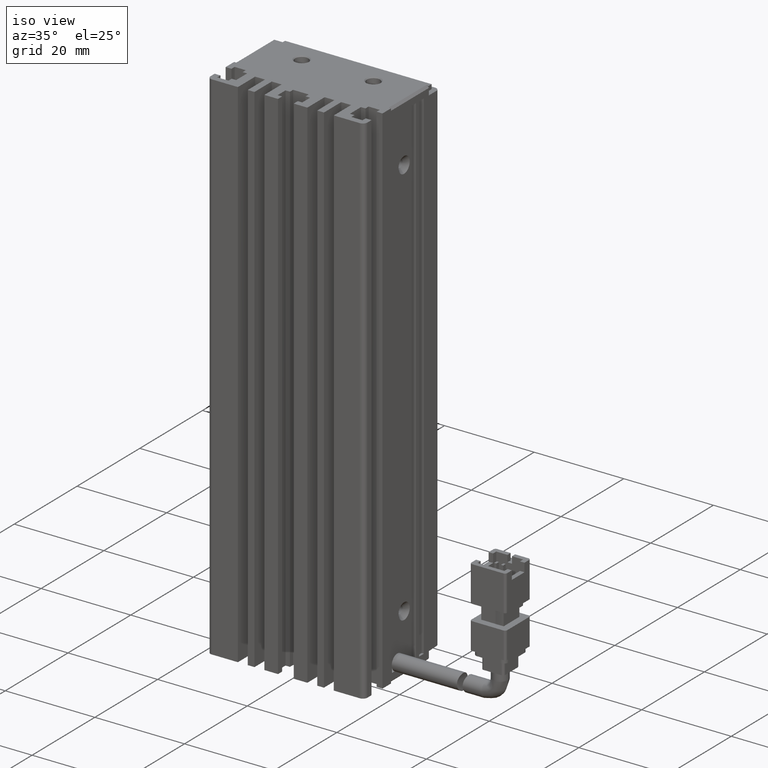
[diagram: clean part render]
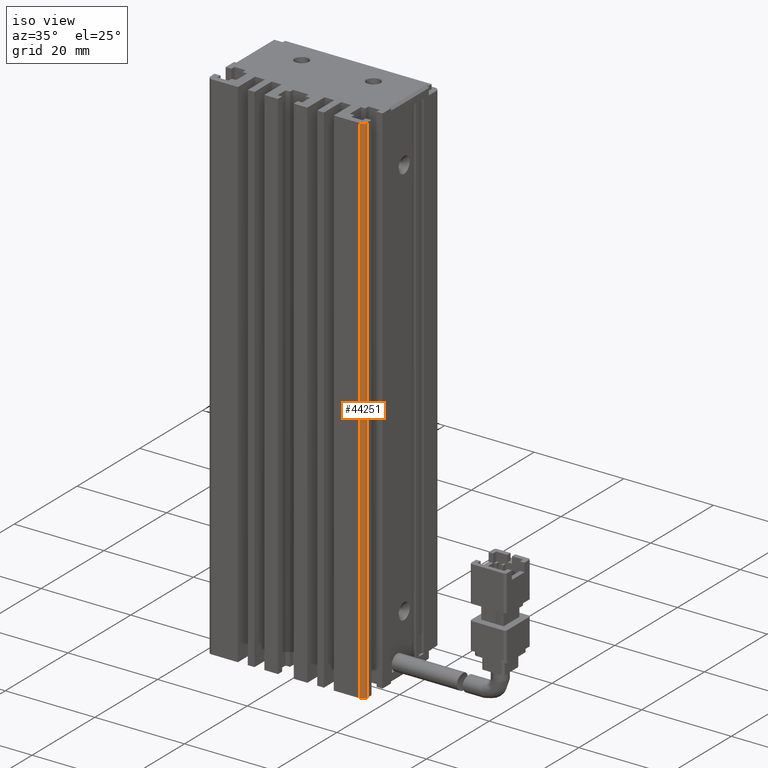
[diagram: same view with one face highlighted and labeled with its STEP entity id]
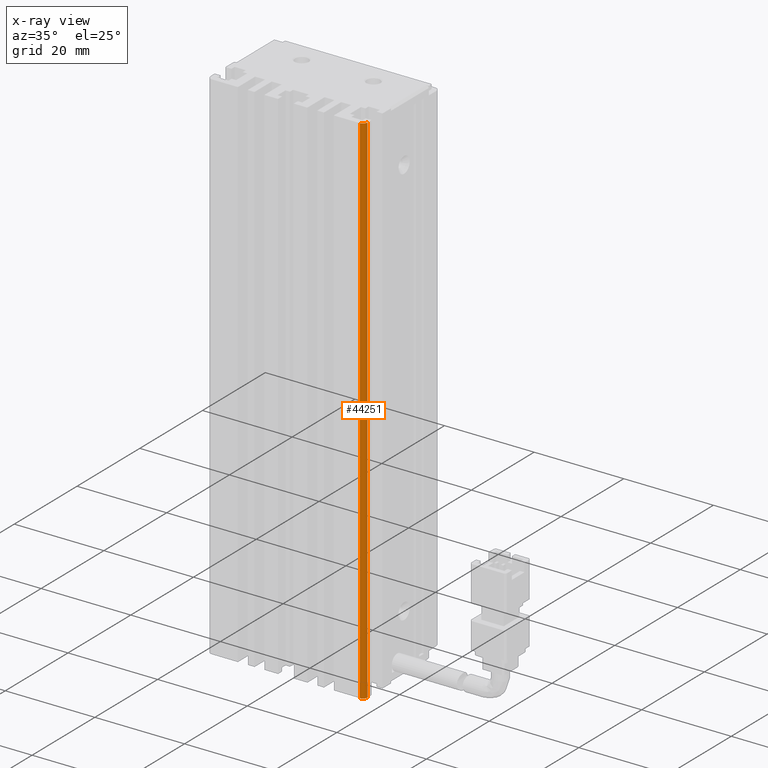
[diagram: x-ray of the same camera — body ghosted, the highlighted face saturated]
A machine part, iso view. The second image highlights one B-rep face of the part: STEP entity #44251.
The next image is the same camera in x-ray: the body ghosted, the highlighted face saturated — about 0% of this face is hidden behind the body in this view.
In plain terms, the highlighted cylindrical surface (edge-blend (fillet) strip) has radius 1 mm, axis along (-0, -0, -1).
Its self-contained STEP definition (entity closure, byte-faithful):
#2670 = ORIENTED_EDGE ( 'NONE', *, *, #47899, .T. ) ;
#5720 = EDGE_CURVE ( 'NONE', #26441, #9424, #18860, .T. ) ;
#7130 = VERTEX_POINT ( 'NONE', #43819 ) ;
#9424 = VERTEX_POINT ( 'NONE', #10482 ) ;
#9854 = DIRECTION ( 'NONE',  ( -1.000000000000000000, 0.0000000000000000000, 0.0000000000000000000 ) ) ;
#10482 = CARTESIAN_POINT ( 'NONE',  ( 58.42537974683542500, 11.99073232304837500, -57.00000000000000000 ) ) ;
#10591 = DIRECTION ( 'NONE',  ( -1.000000000000000000, 0.0000000000000000000, 0.0000000000000000000 ) ) ;
#17211 = EDGE_CURVE ( 'NONE', #9424, #29776, #47358, .T. ) ;
#17926 = AXIS2_PLACEMENT_3D ( 'NONE', #30957, #43326, #9854 ) ;
#18790 = EDGE_CURVE ( 'NONE', #7130, #26441, #34391, .T. ) ;
#18860 = LINE ( 'NONE', #34125, #46592 ) ;
#18866 = CYLINDRICAL_SURFACE ( 'NONE', #31375, 1.000000000000000900 ) ;
#20180 = FACE_OUTER_BOUND ( 'NONE', #27277, .T. ) ;
#23229 = DIRECTION ( 'NONE',  ( 0.0000000000000000000, 0.0000000000000000000, 1.000000000000000000 ) ) ;
#26382 = ORIENTED_EDGE ( 'NONE', *, *, #5720, .T. ) ;
#26441 = VERTEX_POINT ( 'NONE', #27760 ) ;
#27277 = EDGE_LOOP ( 'NONE', ( #31462, #2670, #41873, #26382 ) ) ;
#27760 = CARTESIAN_POINT ( 'NONE',  ( 58.42537974683542500, 11.99073232304837500, -173.0000000000000300 ) ) ;
#27803 = VECTOR ( 'NONE', #53440, 1000.000000000000000 ) ;
#29139 = LINE ( 'NONE', #40883, #27803 ) ;
#29776 = VERTEX_POINT ( 'NONE', #36818 ) ;
#30957 = CARTESIAN_POINT ( 'NONE',  ( 57.42537974683542500, 11.99073232304837700, -57.00000000000000000 ) ) ;
#31375 = AXIS2_PLACEMENT_3D ( 'NONE', #37529, #42164, #46390 ) ;
#31462 = ORIENTED_EDGE ( 'NONE', *, *, #17211, .T. ) ;
#34125 = CARTESIAN_POINT ( 'NONE',  ( 58.42537974683542500, 11.99073232304837700, -57.00000000000000000 ) ) ;
#34391 = CIRCLE ( 'NONE', #47760, 1.000000000000000900 ) ;
#36818 = CARTESIAN_POINT ( 'NONE',  ( 57.42537974683542500, 10.99073232304837200, -57.00000000000000000 ) ) ;
#37529 = CARTESIAN_POINT ( 'NONE',  ( 57.42537974683542500, 11.99073232304837700, -57.00000000000000000 ) ) ;
#40883 = CARTESIAN_POINT ( 'NONE',  ( 57.42537974683542500, 10.99073232304837500, -57.00000000000000000 ) ) ;
#41873 = ORIENTED_EDGE ( 'NONE', *, *, #18790, .T. ) ;
#42164 = DIRECTION ( 'NONE',  ( -0.0000000000000000000, -0.0000000000000000000, -1.000000000000000000 ) ) ;
#42267 = DIRECTION ( 'NONE',  ( 0.0000000000000000000, 0.0000000000000000000, 1.000000000000000000 ) ) ;
#43326 = DIRECTION ( 'NONE',  ( -0.0000000000000000000, -0.0000000000000000000, -1.000000000000000000 ) ) ;
#43819 = CARTESIAN_POINT ( 'NONE',  ( 57.42537974683542500, 10.99073232304837200, -173.0000000000000300 ) ) ;
#44251 = ADVANCED_FACE ( 'NONE', ( #20180 ), #18866, .T. ) ;
#46390 = DIRECTION ( 'NONE',  ( -1.000000000000000000, 0.0000000000000000000, 0.0000000000000000000 ) ) ;
#46592 = VECTOR ( 'NONE', #42267, 1000.000000000000000 ) ;
#47358 = CIRCLE ( 'NONE', #17926, 1.000000000000000900 ) ;
#47760 = AXIS2_PLACEMENT_3D ( 'NONE', #48473, #23229, #10591 ) ;
#47899 = EDGE_CURVE ( 'NONE', #29776, #7130, #29139, .T. ) ;
#48473 = CARTESIAN_POINT ( 'NONE',  ( 57.42537974683542500, 11.99073232304837700, -173.0000000000000300 ) ) ;
#53440 = DIRECTION ( 'NONE',  ( -0.0000000000000000000, -0.0000000000000000000, -1.000000000000000000 ) ) ;